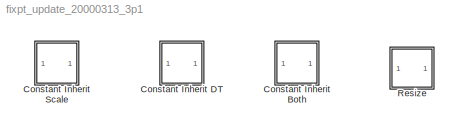
MODEL fixpt_update_20000313_3p1
KIND model
CONFIG AbsTol = auto
CONFIG FixedStep = auto
CONFIG MaxStep = auto
CONFIG MinStep = auto
CONFIG RelTol = 1e-3
CONFIG Solver = FixedStepDiscrete
CONFIG SolverMode = Auto
CONFIG StartTime = 0.0
CONFIG StopTime = 1
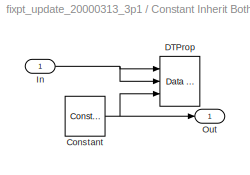
BLOCK [SubSystem] Constant Inherit Both
  MaskCallbackString = |
  MaskDescription = Masked Subsystem
  MaskDisplay = disp(fixpt_mask_disp_prep(constval))
  MaskEnableString = on,on
  MaskIconFrame = on
  MaskIconOpaque = on
  MaskIconRotate = none
  MaskIconUnits = normalized
  MaskInitialization = if DblOver\n  dboStr = 'on';\nelse\n  dboStr = 'off';\nend\nset_param( [gcb, '/DTProp'], 'DblOver',dboStr);\n
  MaskPromptString = Constant value:|Override data type(s) with doubles
  MaskStyleString = edit,checkbox
  MaskToolTipString = on,on
  MaskTunableValueString = on,on
  MaskType = Constant with Inherited Data Type and Scaling (Obsolete)
  MaskValueString = 0.0|off
  MaskVariableAliases = ,
  MaskVariables = constval=@1;DblOver=@2;
  MaskVisibilityString = on,on
  Ports = [1, 1]
  RTWFcnNameOpts = Auto
  RTWFileNameOpts = Auto
  RTWSystemCode = Auto
  ShowPortLabels = on
  TreatAsAtomicUnit = off
BLOCK [Reference] Constant Inherit Both/Constant  REF=fixpt_lib_3p1/Sources/Constant
  ConRadixGroup = Use Specified Scaling
  DblOver = off
  OutDataType = sfix(16)
  OutScaling = 2^0
  OutputDataTypeScalingMode = Inherit via back propagation
  Ports = [0, 1]
  SourceBlock = fixpt_lib_3p1/Sources/Constant
  SourceType = Fixed-Point Constant
  VectInt = on
  constval = constval
BLOCK [Reference] Constant Inherit Both/DTProp  REF=fixpt_lib_3p1/Data Type/Data Type\nPropagation
  BiasAdd = 0
  BiasBase = Bias1
  BiasMult = 1
  DblOver = off
  IfRefDouble = double
  IfRefSingle = single
  IsSigned = IsSigned1
  NumBitsAdd = 0
  NumBitsAllowFinal = 1:128
  NumBitsBase = NumBits1
  NumBitsMult = 1
  Ports = [3]
  PropDataType = sfix(16)
  PropDataTypeMode = Inherit via propagation rule
  PropScaling = 2^-10
  PropScalingMode = Inherit via propagation rule
  SlopeAdd = 0
  SlopeBase = Slope1
  SlopeMult = 1
  SourceBlock = fixpt_lib_3p1/Data Type/Data Type\nPropagation
  SourceType = Fixed-Point Data Type Propagation
  ValuesUsedBestPrec = [5 -7]
BLOCK [Inport] Constant Inherit Both/In
  Interpolate = on
  LatchInput = off
  Port = 1
BLOCK [Outport] Constant Inherit Both/Out
  InitialOutput = []
  OutputWhenDisabled = held
  Port = 1
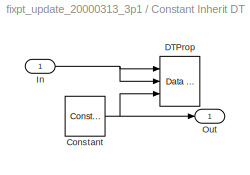
BLOCK [SubSystem] Constant Inherit DT
  MaskCallbackString = |||
  MaskDescription = Masked Subsystem
  MaskDisplay = disp(fixpt_mask_disp_prep(constval))
  MaskEnableString = on,on,on,on
  MaskIconFrame = on
  MaskIconOpaque = on
  MaskIconRotate = none
  MaskIconUnits = normalized
  MaskInitialization = if DblOver\n  dboStr = 'on';\nelse\n  dboStr = 'off';\nend\nif ConRadixGroup == 1\n  propStr = 'Specify via dialog';\nelse\n  propStr = 'Obtain via best precision';\nend\nset_param( [gcb, '/DTProp'], 'DblOver',dboStr,'PropScalingMode', propStr);\n
  MaskPromptString = Constant value:|Output scaling:    Slope or [Slope Bias]    ex.  2^-9|Output scaling:|Override data type(s) with doubles
  MaskStyleString = edit,edit,popup(Use Specified Scaling|Best Precision: Vector-wise),checkbox
  MaskToolTipString = on,on,on,on
  MaskTunableValueString = on,on,on,on
  MaskType = Constant with Inherited Data Type (Obsolete)
  MaskValueString = 0.0|2^-1000|Use Specified Scaling|off
  MaskVariableAliases = ,,,
  MaskVariables = constval=@1;OutScaling=@2;ConRadixGroup=@3;DblOver=@4;
  MaskVisibilityString = on,on,on,on
  Ports = [1, 1]
  RTWFcnNameOpts = Auto
  RTWFileNameOpts = Auto
  RTWSystemCode = Auto
  ShowPortLabels = on
  TreatAsAtomicUnit = off
BLOCK [Reference] Constant Inherit DT/Constant  REF=fixpt_lib_3p1/Sources/Constant
  ConRadixGroup = Use Specified Scaling
  DblOver = off
  OutDataType = sfix(16)
  OutScaling = 2^0
  OutputDataTypeScalingMode = Inherit via back propagation
  Ports = [0, 1]
  SourceBlock = fixpt_lib_3p1/Sources/Constant
  SourceType = Fixed-Point Constant
  VectInt = on
  constval = constval
BLOCK [Reference] Constant Inherit DT/DTProp  REF=fixpt_lib_3p1/Data Type/Data Type\nPropagation
  BiasAdd = 0
  BiasBase = Bias1
  BiasMult = 1
  DblOver = off
  IfRefDouble = double
  IfRefSingle = single
  IsSigned = IsSigned1
  NumBitsAdd = 0
  NumBitsAllowFinal = 1:128
  NumBitsBase = NumBits1
  NumBitsMult = 1
  Ports = [3]
  PropDataType = sfix(16)
  PropDataTypeMode = Inherit via propagation rule
  PropScaling = OutScaling
  PropScalingMode = Specify via dialog
  SlopeAdd = 0
  SlopeBase = Slope1
  SlopeMult = 1
  SourceBlock = fixpt_lib_3p1/Data Type/Data Type\nPropagation
  SourceType = Fixed-Point Data Type Propagation
  ValuesUsedBestPrec = constval
BLOCK [Inport] Constant Inherit DT/In
  Interpolate = on
  LatchInput = off
  Port = 1
BLOCK [Outport] Constant Inherit DT/Out
  InitialOutput = []
  OutputWhenDisabled = held
  Port = 1
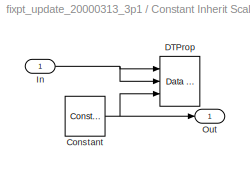
BLOCK [SubSystem] Constant Inherit Scale
  MaskCallbackString = ||
  MaskDescription = Masked Subsystem
  MaskDisplay = disp(fixpt_mask_disp_prep(constval))
  MaskEnableString = on,on,on
  MaskIconFrame = on
  MaskIconOpaque = on
  MaskIconRotate = none
  MaskIconUnits = normalized
  MaskInitialization = if DblOver\n  dboStr = 'on';\nelse\n  dboStr = 'off';\nend\nset_param( [gcb, '/DTProp'], 'DblOver',dboStr);\n
  MaskPromptString = Constant value:|Output data type:     ex.  sfix(16),  uint(8),  float('single')|Override data type(s) with doubles
  MaskStyleString = edit,edit,checkbox
  MaskToolTipString = on,on,on
  MaskTunableValueString = on,on,on
  MaskType = Constant with Inherited Scaling (Obsolete)
  MaskValueString = 0.0|sfix(16)|off
  MaskVariableAliases = ,,
  MaskVariables = constval=@1;OutDataType=@2;DblOver=@3;
  MaskVisibilityString = on,on,on
  Ports = [1, 1]
  RTWFcnNameOpts = Auto
  RTWFileNameOpts = Auto
  RTWSystemCode = Auto
  ShowPortLabels = on
  TreatAsAtomicUnit = off
BLOCK [Reference] Constant Inherit Scale/Constant  REF=fixpt_lib_3p1/Sources/Constant
  ConRadixGroup = Use Specified Scaling
  DblOver = off
  OutDataType = sfix(16)
  OutScaling = 2^0
  OutputDataTypeScalingMode = Inherit via back propagation
  Ports = [0, 1]
  SourceBlock = fixpt_lib_3p1/Sources/Constant
  SourceType = Fixed-Point Constant
  VectInt = on
  constval = constval
BLOCK [Reference] Constant Inherit Scale/DTProp  REF=fixpt_lib_3p1/Data Type/Data Type\nPropagation
  BiasAdd = 0
  BiasBase = Bias1
  BiasMult = 1
  DblOver = off
  IfRefDouble = double
  IfRefSingle = single
  IsSigned = IsSigned1
  NumBitsAdd = 0
  NumBitsAllowFinal = 1:128
  NumBitsBase = NumBits1
  NumBitsMult = 1
  Ports = [3]
  PropDataType = OutDataType
  PropDataTypeMode = Specify via dialog
  PropScaling = 2^-10
  PropScalingMode = Inherit via propagation rule
  SlopeAdd = 0
  SlopeBase = Slope1
  SlopeMult = 1
  SourceBlock = fixpt_lib_3p1/Data Type/Data Type\nPropagation
  SourceType = Fixed-Point Data Type Propagation
  ValuesUsedBestPrec = [5 -7]
BLOCK [Inport] Constant Inherit Scale/In
  Interpolate = on
  LatchInput = off
  Port = 1
BLOCK [Outport] Constant Inherit Scale/Out
  InitialOutput = []
  OutputWhenDisabled = held
  Port = 1
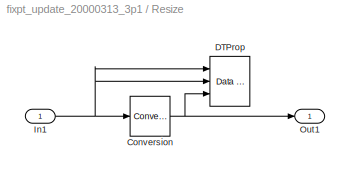
BLOCK [SubSystem] Resize
  MaskCallbackString = if any(strcmp(get_param(gcb, 'ResizeAction'), {'Decrease bits by half', 'Increase bits by twice'})), set_param(gcb, 'MaskVisibilities', {'on'; 'on'; 'off'; 'on'; 'on'; 'on'; 'on'}), else, set_param(gcb, 'MaskVisibilities', {'on'; 'on'; 'on'; 'on'; 'on'; 'on'; 'on'}), end||||||
  MaskDescription = Resize the number of bits used by a Fixed-Point Blockset signal.\n\nThis block is obsolete. Its function has been replaced by the FixPt Data Type Propagation block.  Look under the mask of this block for more information on how to use this new block to perform the same function.
  MaskDisplay = fprintf('Resize')
  MaskEnableString = on,on,on,on,on,on,on
  MaskHelp = This block is obsolete. Its function has been replaced by the FixPt Data Type Propagation block.  Look under the mask of this block for more information on how to use this new block to perform the same function.
  MaskIconFrame = on
  MaskIconOpaque = on
  MaskIconRotate = none
  MaskIconUnits = normalized
  MaskInitialization = ResizeAction           = get_param(gcb,'ResizeAction');\nRetainRangeOrPrecision = get_param(gcb,'RetainRangeOrPrecision');\nNumBits                = get_param(gcb,'NumBits');\nRndMeth                = get_param(gcb,'RndMeth');\nDoSatur                = get_param(gcb,'DoSatur');\nDblOver                = get_param(gcb,'DblOver');\ndolog                  = get_param(gcb,'dolog');\n\nswitch ResizeAct...<+871ch>
  MaskPromptString = Resize action:|Retain:|Number of Bits|Round toward:|Saturate to max or min when overflows occur|Override data type(s) with doubles|Log minimums and maximums
  MaskSelfModifiable = on
  MaskStyleString = popup(Decrease bits by half|Decrease bits by specified number|Increase bits by twice|Increase bits by specified number|Set bits to specified number),popup(range|precision),edit,popup(Zero|Nearest|Ceiling|Floor),checkbox,checkbox,checkbox
  MaskToolTipString = on,on,on,on,on,on,on
  MaskTunableValueString = on,on,on,on,on,on,on
  MaskType = Fixed-Point to Fixed-Point Resize (Obsolete)
  MaskValueString = Decrease bits by half|range|16|Floor|off|off|off
  MaskVariableAliases = ,,,,,,
  MaskVariables = ResizeAction=@1;RetainRangeOrPrecision=@2;NumBits=@3;RndMeth=@4;DoSatur=@5;DblOver=@6;dolog=@7;
  MaskVisibilityString = on,on,off,on,on,on,on
  Ports = [1, 1]
  RTWFcnNameOpts = Auto
  RTWFileNameOpts = Auto
  RTWSystemCode = Auto
  ShowPortLabels = on
  TreatAsAtomicUnit = off
BLOCK [Reference] Resize/Conversion  REF=fixpt_lib_3p1/Data Type/Conversion
  ConvertRealWorld = Real World Value
  DblOver = off
  DoSatur = off
  LockScale = off
  OutDataType = sfix(16)
  OutScaling = 2^-10
  OutputDataTypeScalingMode = Inherit via back propagation
  Ports = [1, 1]
  RndMeth = Floor
  SourceBlock = fixpt_lib_3p1/Data Type/Conversion
  SourceType = Fixed-Point to Fixed-Point Conversion
  dolog = off
BLOCK [Reference] Resize/DTProp  REF=fixpt_lib_3p1/Data Type/Data Type\nPropagation
  BiasAdd = 0
  BiasBase = Bias1
  BiasMult = 1
  DblOver = off
  IfRefDouble = double
  IfRefSingle = single
  IsSigned = IsSigned1
  NumBitsAdd = 0
  NumBitsAllowFinal = 1:128
  NumBitsBase = NumBits1
  NumBitsMult = 1/2
  Ports = [3]
  PropDataType = sfix(16)
  PropDataTypeMode = Inherit via propagation rule
  PropScaling = 2^-10
  PropScalingMode = Inherit via propagation rule
  SlopeAdd = 0
  SlopeBase = PosRange1
  SlopeMult = 1
  SourceBlock = fixpt_lib_3p1/Data Type/Data Type\nPropagation
  SourceType = Fixed-Point Data Type Propagation
  ValuesUsedBestPrec = [5 -7]
BLOCK [Inport] Resize/In1
  Interpolate = on
  LatchInput = off
  Port = 1
BLOCK [Outport] Resize/Out1
  InitialOutput = []
  OutputWhenDisabled = held
  Port = 1
NET Constant Inherit Both/Constant:1 -> Constant Inherit Both/DTProp:3, Constant Inherit Both/Out:1
NET Constant Inherit Both/In:1 -> Constant Inherit Both/DTProp:1, Constant Inherit Both/DTProp:2
NET Constant Inherit DT/Constant:1 -> Constant Inherit DT/DTProp:3, Constant Inherit DT/Out:1
NET Constant Inherit DT/In:1 -> Constant Inherit DT/DTProp:1, Constant Inherit DT/DTProp:2
NET Constant Inherit Scale/Constant:1 -> Constant Inherit Scale/DTProp:3, Constant Inherit Scale/Out:1
NET Constant Inherit Scale/In:1 -> Constant Inherit Scale/DTProp:1, Constant Inherit Scale/DTProp:2
NET Resize/Conversion:1 -> Resize/DTProp:3, Resize/Out1:1
NET Resize/In1:1 -> Resize/Conversion:1, Resize/DTProp:1, Resize/DTProp:2
note: NET lines group one-source signal fan-out (src -> all destinations, sorted); 1:1 wires keep LINE
